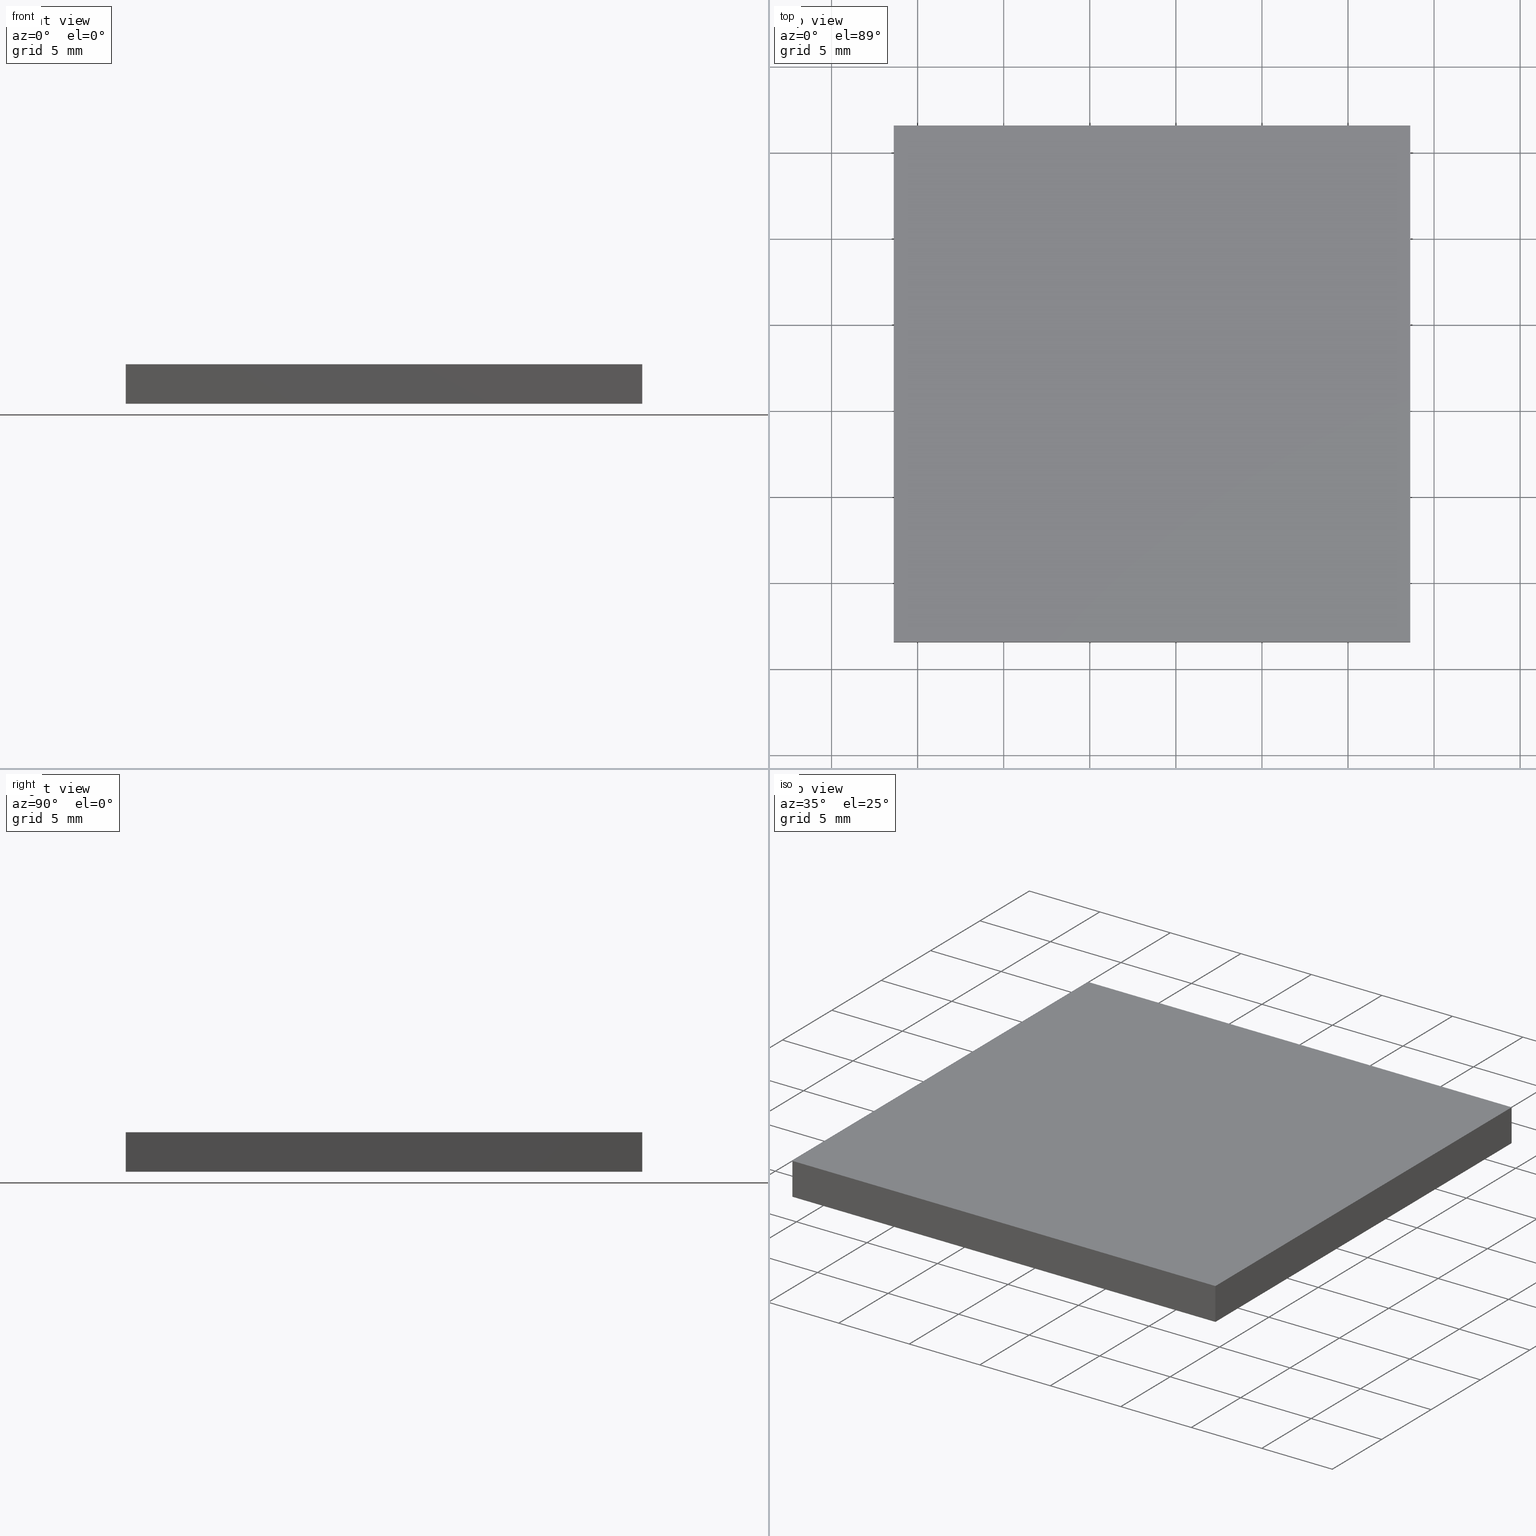
[diagram: canonical four-view strip — front | top / right | iso, engineering-drawing reading convention]
A machine part, canonical four-view strip (front | top / right | iso — engineering-drawing reading convention). The complete STEP part file that produces these views, byte-faithful:
ISO-10303-21;
HEADER;
FILE_DESCRIPTION (( 'STEP AP214' ),
    '1' );
FILE_NAME ('302521.STEP',
    '2019-08-13T06:30:06',
    ( '' ),
    ( '' ),
    'SwSTEP 2.0',
    'SolidWorks 2016',
    '' );
FILE_SCHEMA (( 'AUTOMOTIVE_DESIGN' ));
ENDSEC;

DATA;
#1 = DIRECTION ( 'NONE',  ( 1.000000000000000000, 4.625929269271485900E-016, -0.0000000000000000000 ) ) ;
#2 = DIRECTION ( 'NONE',  ( -1.000000000000000000, -4.625929269271485900E-016, -0.0000000000000000000 ) ) ;
#3 = FACE_OUTER_BOUND ( 'NONE', #202, .T. ) ;
#4 = DIRECTION ( 'NONE',  ( 0.0000000000000000000, 0.0000000000000000000, 1.000000000000000000 ) ) ;
#5 = FACE_OUTER_BOUND ( 'NONE', #192, .T. ) ;
#6 = EDGE_CURVE ( 'NONE', #91, #160, #127, .T. ) ;
#7 =( GEOMETRIC_REPRESENTATION_CONTEXT ( 3 ) GLOBAL_UNCERTAINTY_ASSIGNED_CONTEXT ( ( #95 ) ) GLOBAL_UNIT_ASSIGNED_CONTEXT ( ( #39, #168, #27 ) ) REPRESENTATION_CONTEXT ( 'NONE', 'WORKASPACE' ) );
#8 = ADVANCED_FACE ( 'NONE', ( #172 ), #129, .F. ) ;
#9 = SURFACE_STYLE_USAGE ( .BOTH. , #101 ) ;
#10 = VECTOR ( 'NONE', #88, 1000.000000000000000 ) ;
#11 =( LENGTH_UNIT ( ) NAMED_UNIT ( * ) SI_UNIT ( .MILLI., .METRE. ) );
#12 = CARTESIAN_POINT ( 'NONE',  ( 93.61498394228370000, 46.56324183452659300, 2.299999999999999800 ) ) ;
#13 = DIRECTION ( 'NONE',  ( 0.0000000000000000000, 1.000000000000000000, 0.0000000000000000000 ) ) ;
#14 = CARTESIAN_POINT ( 'NONE',  ( 0.0000000000000000000, 0.0000000000000000000, 2.299999999999999800 ) ) ;
#15 = DIRECTION ( 'NONE',  ( -0.0000000000000000000, -0.0000000000000000000, -1.000000000000000000 ) ) ;
#16 = CARTESIAN_POINT ( 'NONE',  ( 93.61498394228370000, 46.56324183452659300, 0.0000000000000000000 ) ) ;
#17 = EDGE_CURVE ( 'NONE', #188, #128, #82, .T. ) ;
#18 = ORIENTED_EDGE ( 'NONE', *, *, #81, .F. ) ;
#19 = DIRECTION ( 'NONE',  ( -1.000000000000000000, -4.625929269271485900E-016, -0.0000000000000000000 ) ) ;
#20 = ORIENTED_EDGE ( 'NONE', *, *, #81, .T. ) ;
#21 = SHAPE_DEFINITION_REPRESENTATION ( #28, #126 ) ;
#22 = EDGE_CURVE ( 'NONE', #37, #188, #41, .T. ) ;
#23 = CARTESIAN_POINT ( 'NONE',  ( 93.61498394228368600, 76.56324183452659300, 2.299999999999999800 ) ) ;
#24 = ORIENTED_EDGE ( 'NONE', *, *, #6, .F. ) ;
#25 = DIRECTION ( 'NONE',  ( -1.000000000000000000, -4.625929269271483900E-016, 0.0000000000000000000 ) ) ;
#26 = SURFACE_STYLE_FILL_AREA ( #57 ) ;
#27 =( NAMED_UNIT ( * ) SI_UNIT ( $, .STERADIAN. ) SOLID_ANGLE_UNIT ( ) );
#28 = PRODUCT_DEFINITION_SHAPE ( 'NONE', 'NONE',  #165 ) ;
#29 = EDGE_CURVE ( 'NONE', #37, #160, #183, .T. ) ;
#30 = ORIENTED_EDGE ( 'NONE', *, *, #100, .T. ) ;
#31 =( GEOMETRIC_REPRESENTATION_CONTEXT ( 3 ) GLOBAL_UNCERTAINTY_ASSIGNED_CONTEXT ( ( #113 ) ) GLOBAL_UNIT_ASSIGNED_CONTEXT ( ( #132, #86, #199 ) ) REPRESENTATION_CONTEXT ( 'NONE', 'WORKASPACE' ) );
#32 = APPLICATION_CONTEXT ( 'automotive_design' ) ;
#33 = PRESENTATION_LAYER_ASSIGNMENT (  '', '', ( #185 ) ) ;
#34 = FACE_OUTER_BOUND ( 'NONE', #178, .T. ) ;
#35 = COLOUR_RGB ( '',1.000000000000000000, 1.000000000000000000, 1.000000000000000000 ) ;
#36 = PRODUCT_RELATED_PRODUCT_CATEGORY ( 'part', '', ( #74 ) ) ;
#37 = VERTEX_POINT ( 'NONE', #198 ) ;
#38 = VECTOR ( 'NONE', #59, 1000.000000000000000 ) ;
#39 =( LENGTH_UNIT ( ) NAMED_UNIT ( * ) SI_UNIT ( .MILLI., .METRE. ) );
#40 = MANIFOLD_SOLID_BREP ( '͹̨-����1', #157 ) ;
#41 = LINE ( 'NONE', #176, #94 ) ;
#42 = DIRECTION ( 'NONE',  ( 4.625929269271483900E-016, -1.000000000000000000, 0.0000000000000000000 ) ) ;
#43 = CARTESIAN_POINT ( 'NONE',  ( 123.6149839422836900, 76.56324183452660700, 2.299999999999999800 ) ) ;
#44 = CARTESIAN_POINT ( 'NONE',  ( 123.6149839422836900, 46.56324183452659300, 2.299999999999999800 ) ) ;
#45 = DIRECTION ( 'NONE',  ( -4.625929269271483900E-016, 1.000000000000000000, -0.0000000000000000000 ) ) ;
#46 = LINE ( 'NONE', #48, #38 ) ;
#47 = CARTESIAN_POINT ( 'NONE',  ( 93.61498394228368600, 76.56324183452659300, 2.299999999999999800 ) ) ;
#48 = CARTESIAN_POINT ( 'NONE',  ( 93.61498394228368600, 76.56324183452659300, 2.299999999999999800 ) ) ;
#49 = ORIENTED_EDGE ( 'NONE', *, *, #100, .F. ) ;
#50 = AXIS2_PLACEMENT_3D ( 'NONE', #14, #146, #166 ) ;
#51 = ORIENTED_EDGE ( 'NONE', *, *, #17, .F. ) ;
#52 = ORIENTED_EDGE ( 'NONE', *, *, #29, .T. ) ;
#53 = DIRECTION ( 'NONE',  ( -0.0000000000000000000, -0.0000000000000000000, -1.000000000000000000 ) ) ;
#54 = PLANE ( 'NONE',  #200 ) ;
#55 = DIRECTION ( 'NONE',  ( 1.000000000000000000, 0.0000000000000000000, 0.0000000000000000000 ) ) ;
#56 = SURFACE_STYLE_USAGE ( .BOTH. , #77 ) ;
#57 = FILL_AREA_STYLE ('',( #147 ) ) ;
#58 = DIRECTION ( 'NONE',  ( 0.0000000000000000000, -0.0000000000000000000, 1.000000000000000000 ) ) ;
#59 = DIRECTION ( 'NONE',  ( 4.625929269271485900E-016, -1.000000000000000000, 0.0000000000000000000 ) ) ;
#60 = APPLICATION_PROTOCOL_DEFINITION ( 'draft international standard', 'automotive_design', 1998, #32 ) ;
#61 = VECTOR ( 'NONE', #15, 1000.000000000000000 ) ;
#62 = DIRECTION ( 'NONE',  ( 1.000000000000000000, 0.0000000000000000000, 0.0000000000000000000 ) ) ;
#63 = EDGE_CURVE ( 'NONE', #170, #37, #140, .T. ) ;
#64 = ORIENTED_EDGE ( 'NONE', *, *, #93, .T. ) ;
#65 = ORIENTED_EDGE ( 'NONE', *, *, #22, .T. ) ;
#66 = EDGE_CURVE ( 'NONE', #188, #123, #114, .T. ) ;
#67 = ADVANCED_FACE ( 'NONE', ( #72 ), #78, .F. ) ;
#68 = DIRECTION ( 'NONE',  ( 4.625929269271485900E-016, -1.000000000000000000, 0.0000000000000000000 ) ) ;
#69 = ORIENTED_EDGE ( 'NONE', *, *, #29, .F. ) ;
#70 = CARTESIAN_POINT ( 'NONE',  ( 93.61498394228370000, 46.56324183452659300, 0.0000000000000000000 ) ) ;
#71 = DIRECTION ( 'NONE',  ( 4.625929269271485900E-016, -1.000000000000000000, 0.0000000000000000000 ) ) ;
#72 = FACE_OUTER_BOUND ( 'NONE', #186, .T. ) ;
#73 = CARTESIAN_POINT ( 'NONE',  ( 93.61498394228370000, 46.56324183452659300, 2.299999999999999800 ) ) ;
#74 = PRODUCT ( '302521', '302521', '', ( #125 ) ) ;
#75 = CARTESIAN_POINT ( 'NONE',  ( 93.61498394228368600, 76.56324183452659300, 2.299999999999999800 ) ) ;
#76 = CARTESIAN_POINT ( 'NONE',  ( 93.61498394228368600, 76.56324183452659300, 0.0000000000000000000 ) ) ;
#77 = SURFACE_SIDE_STYLE ('',( #84 ) ) ;
#78 = PLANE ( 'NONE',  #98 ) ;
#79 = MECHANICAL_DESIGN_GEOMETRIC_PRESENTATION_REPRESENTATION (  '', ( #185 ), #7 ) ;
#80 = LINE ( 'NONE', #122, #83 ) ;
#81 = EDGE_CURVE ( 'NONE', #123, #105, #138, .T. ) ;
#82 = LINE ( 'NONE', #174, #10 ) ;
#83 = VECTOR ( 'NONE', #45, 1000.000000000000000 ) ;
#84 = SURFACE_STYLE_FILL_AREA ( #177 ) ;
#85 = DIRECTION ( 'NONE',  ( -4.625929269271483900E-016, 1.000000000000000000, -0.0000000000000000000 ) ) ;
#86 =( NAMED_UNIT ( * ) PLANE_ANGLE_UNIT ( ) SI_UNIT ( $, .RADIAN. ) );
#87 = ORIENTED_EDGE ( 'NONE', *, *, #66, .F. ) ;
#88 = DIRECTION ( 'NONE',  ( -0.0000000000000000000, -0.0000000000000000000, -1.000000000000000000 ) ) ;
#89 =( NAMED_UNIT ( * ) PLANE_ANGLE_UNIT ( ) SI_UNIT ( $, .RADIAN. ) );
#90 = CARTESIAN_POINT ( 'NONE',  ( 93.61498394228368600, 76.56324183452659300, 2.299999999999999800 ) ) ;
#91 = VERTEX_POINT ( 'NONE', #16 ) ;
#92 = ORIENTED_EDGE ( 'NONE', *, *, #63, .T. ) ;
#93 = EDGE_CURVE ( 'NONE', #128, #105, #116, .T. ) ;
#94 = VECTOR ( 'NONE', #85, 1000.000000000000000 ) ;
#95 = UNCERTAINTY_MEASURE_WITH_UNIT (LENGTH_MEASURE( 1.000000000000000100E-005 ), #39, 'distance_accuracy_value', 'NONE');
#96 = EDGE_CURVE ( 'NONE', #123, #170, #46, .T. ) ;
#97 = PRODUCT_DEFINITION_FORMATION_WITH_SPECIFIED_SOURCE ( '�κ�', '', #74, .NOT_KNOWN. ) ;
#98 = AXIS2_PLACEMENT_3D ( 'NONE', #106, #180, #135 ) ;
#99 = VECTOR ( 'NONE', #19, 1000.000000000000000 ) ;
#100 = EDGE_CURVE ( 'NONE', #160, #128, #80, .T. ) ;
#101 = SURFACE_SIDE_STYLE ('',( #26 ) ) ;
#102 = PRESENTATION_STYLE_ASSIGNMENT (( #9 ) ) ;
#103 = ADVANCED_FACE ( 'NONE', ( #3 ), #133, .F. ) ;
#104 =( NAMED_UNIT ( * ) SI_UNIT ( $, .STERADIAN. ) SOLID_ANGLE_UNIT ( ) );
#105 = VERTEX_POINT ( 'NONE', #107 ) ;
#106 = CARTESIAN_POINT ( 'NONE',  ( 0.0000000000000000000, 0.0000000000000000000, 0.0000000000000000000 ) ) ;
#107 = CARTESIAN_POINT ( 'NONE',  ( 93.61498394228368600, 76.56324183452659300, 0.0000000000000000000 ) ) ;
#108 = ORIENTED_EDGE ( 'NONE', *, *, #137, .F. ) ;
#109 = ORIENTED_EDGE ( 'NONE', *, *, #6, .T. ) ;
#110 =( GEOMETRIC_REPRESENTATION_CONTEXT ( 3 ) GLOBAL_UNCERTAINTY_ASSIGNED_CONTEXT ( ( #190 ) ) GLOBAL_UNIT_ASSIGNED_CONTEXT ( ( #11, #89, #104 ) ) REPRESENTATION_CONTEXT ( 'NONE', 'WORKASPACE' ) );
#111 = AXIS2_PLACEMENT_3D ( 'NONE', #43, #25, #42 ) ;
#112 = EDGE_LOOP ( 'NONE', ( #154, #92, #65, #115 ) ) ;
#113 = UNCERTAINTY_MEASURE_WITH_UNIT (LENGTH_MEASURE( 1.000000000000000100E-005 ), #132, 'distance_accuracy_value', 'NONE');
#114 = LINE ( 'NONE', #90, #99 ) ;
#115 = ORIENTED_EDGE ( 'NONE', *, *, #66, .T. ) ;
#116 = LINE ( 'NONE', #76, #121 ) ;
#117 = ADVANCED_FACE ( 'NONE', ( #5 ), #118, .F. ) ;
#118 = PLANE ( 'NONE',  #139 ) ;
#119 = CARTESIAN_POINT ( 'NONE',  ( 93.61498394228368600, 76.56324183452659300, 0.0000000000000000000 ) ) ;
#120 = ORIENTED_EDGE ( 'NONE', *, *, #17, .T. ) ;
#121 = VECTOR ( 'NONE', #2, 1000.000000000000000 ) ;
#122 = CARTESIAN_POINT ( 'NONE',  ( 123.6149839422836900, 76.56324183452660700, 0.0000000000000000000 ) ) ;
#123 = VERTEX_POINT ( 'NONE', #47 ) ;
#124 = ORIENTED_EDGE ( 'NONE', *, *, #63, .F. ) ;
#125 = PRODUCT_CONTEXT ( 'NONE', #134, 'mechanical' ) ;
#126 = ADVANCED_BREP_SHAPE_REPRESENTATION ( '302521', ( #40, #143 ), #110 ) ;
#127 = LINE ( 'NONE', #70, #187 ) ;
#128 = VERTEX_POINT ( 'NONE', #151 ) ;
#129 = PLANE ( 'NONE',  #131 ) ;
#130 = COLOUR_RGB ( '',1.000000000000000000, 1.000000000000000000, 1.000000000000000000 ) ;
#131 = AXIS2_PLACEMENT_3D ( 'NONE', #23, #68, #145 ) ;
#132 =( LENGTH_UNIT ( ) NAMED_UNIT ( * ) SI_UNIT ( .MILLI., .METRE. ) );
#133 = PLANE ( 'NONE',  #111 ) ;
#134 = APPLICATION_CONTEXT ( 'automotive_design' ) ;
#135 = DIRECTION ( 'NONE',  ( 1.000000000000000000, 0.0000000000000000000, 0.0000000000000000000 ) ) ;
#136 = EDGE_LOOP ( 'NONE', ( #64, #18, #87, #120 ) ) ;
#137 = EDGE_CURVE ( 'NONE', #105, #91, #167, .T. ) ;
#138 = LINE ( 'NONE', #169, #61 ) ;
#139 = AXIS2_PLACEMENT_3D ( 'NONE', #75, #1, #196 ) ;
#140 = LINE ( 'NONE', #12, #195 ) ;
#141 = ORIENTED_EDGE ( 'NONE', *, *, #193, .T. ) ;
#142 = ORIENTED_EDGE ( 'NONE', *, *, #193, .F. ) ;
#143 = AXIS2_PLACEMENT_3D ( 'NONE', #175, #4, #62 ) ;
#144 = FILL_AREA_STYLE_COLOUR ( '', #35 ) ;
#145 = DIRECTION ( 'NONE',  ( 1.000000000000000000, 4.625929269271485900E-016, 0.0000000000000000000 ) ) ;
#146 = DIRECTION ( 'NONE',  ( -0.0000000000000000000, 0.0000000000000000000, 1.000000000000000000 ) ) ;
#147 = FILL_AREA_STYLE_COLOUR ( '', #130 ) ;
#148 = APPLICATION_PROTOCOL_DEFINITION ( 'draft international standard', 'automotive_design', 1998, #134 ) ;
#149 = ORIENTED_EDGE ( 'NONE', *, *, #137, .T. ) ;
#150 = STYLED_ITEM ( 'NONE', ( #156 ), #126 ) ;
#151 = CARTESIAN_POINT ( 'NONE',  ( 123.6149839422836900, 76.56324183452660700, 0.0000000000000000000 ) ) ;
#152 = ORIENTED_EDGE ( 'NONE', *, *, #93, .F. ) ;
#153 = VECTOR ( 'NONE', #53, 1000.000000000000000 ) ;
#154 = ORIENTED_EDGE ( 'NONE', *, *, #96, .T. ) ;
#155 = VECTOR ( 'NONE', #71, 1000.000000000000000 ) ;
#156 = PRESENTATION_STYLE_ASSIGNMENT (( #56 ) ) ;
#157 = CLOSED_SHELL ( 'NONE', ( #117, #162, #103, #8, #164, #67 ) ) ;
#158 = ORIENTED_EDGE ( 'NONE', *, *, #96, .F. ) ;
#159 = DIRECTION ( 'NONE',  ( 1.000000000000000000, 0.0000000000000000000, 0.0000000000000000000 ) ) ;
#160 = VERTEX_POINT ( 'NONE', #182 ) ;
#161 = PLANE ( 'NONE',  #50 ) ;
#162 = ADVANCED_FACE ( 'NONE', ( #34 ), #54, .F. ) ;
#163 = DIRECTION ( 'NONE',  ( -0.0000000000000000000, -0.0000000000000000000, -1.000000000000000000 ) ) ;
#164 = ADVANCED_FACE ( 'NONE', ( #194 ), #161, .T. ) ;
#165 = PRODUCT_DEFINITION ( 'δ֪', '', #97, #173 ) ;
#166 = DIRECTION ( 'NONE',  ( 1.000000000000000000, 0.0000000000000000000, 0.0000000000000000000 ) ) ;
#167 = LINE ( 'NONE', #119, #155 ) ;
#168 =( NAMED_UNIT ( * ) PLANE_ANGLE_UNIT ( ) SI_UNIT ( $, .RADIAN. ) );
#169 = CARTESIAN_POINT ( 'NONE',  ( 93.61498394228368600, 76.56324183452659300, 2.299999999999999800 ) ) ;
#170 = VERTEX_POINT ( 'NONE', #73 ) ;
#171 = ORIENTED_EDGE ( 'NONE', *, *, #22, .F. ) ;
#172 = FACE_OUTER_BOUND ( 'NONE', #136, .T. ) ;
#173 = PRODUCT_DEFINITION_CONTEXT ( 'detailed design', #32, 'design' ) ;
#174 = CARTESIAN_POINT ( 'NONE',  ( 123.6149839422836900, 76.56324183452660700, 2.299999999999999800 ) ) ;
#175 = CARTESIAN_POINT ( 'NONE',  ( 0.0000000000000000000, 0.0000000000000000000, 0.0000000000000000000 ) ) ;
#176 = CARTESIAN_POINT ( 'NONE',  ( 123.6149839422836900, 76.56324183452660700, 2.299999999999999800 ) ) ;
#177 = FILL_AREA_STYLE ('',( #144 ) ) ;
#178 = EDGE_LOOP ( 'NONE', ( #109, #69, #124, #141 ) ) ;
#179 = CARTESIAN_POINT ( 'NONE',  ( 123.6149839422836900, 76.56324183452660700, 2.299999999999999800 ) ) ;
#180 = DIRECTION ( 'NONE',  ( -0.0000000000000000000, 0.0000000000000000000, 1.000000000000000000 ) ) ;
#181 = CARTESIAN_POINT ( 'NONE',  ( 93.61498394228370000, 46.56324183452659300, 2.299999999999999800 ) ) ;
#182 = CARTESIAN_POINT ( 'NONE',  ( 123.6149839422836900, 46.56324183452659300, 0.0000000000000000000 ) ) ;
#183 = LINE ( 'NONE', #44, #153 ) ;
#184 = PRESENTATION_LAYER_ASSIGNMENT (  '', '', ( #150 ) ) ;
#185 = STYLED_ITEM ( 'NONE', ( #102 ), #40 ) ;
#186 = EDGE_LOOP ( 'NONE', ( #108, #152, #49, #24 ) ) ;
#187 = VECTOR ( 'NONE', #159, 1000.000000000000000 ) ;
#188 = VERTEX_POINT ( 'NONE', #179 ) ;
#189 = MECHANICAL_DESIGN_GEOMETRIC_PRESENTATION_REPRESENTATION (  '', ( #150 ), #31 ) ;
#190 = UNCERTAINTY_MEASURE_WITH_UNIT (LENGTH_MEASURE( 1.000000000000000100E-005 ), #11, 'distance_accuracy_value', 'NONE');
#191 = LINE ( 'NONE', #201, #197 ) ;
#192 = EDGE_LOOP ( 'NONE', ( #149, #142, #158, #20 ) ) ;
#193 = EDGE_CURVE ( 'NONE', #170, #91, #191, .T. ) ;
#194 = FACE_OUTER_BOUND ( 'NONE', #112, .T. ) ;
#195 = VECTOR ( 'NONE', #55, 1000.000000000000000 ) ;
#196 = DIRECTION ( 'NONE',  ( -4.625929269271485900E-016, 1.000000000000000000, 0.0000000000000000000 ) ) ;
#197 = VECTOR ( 'NONE', #163, 1000.000000000000000 ) ;
#198 = CARTESIAN_POINT ( 'NONE',  ( 123.6149839422836900, 46.56324183452659300, 2.299999999999999800 ) ) ;
#199 =( NAMED_UNIT ( * ) SI_UNIT ( $, .STERADIAN. ) SOLID_ANGLE_UNIT ( ) );
#200 = AXIS2_PLACEMENT_3D ( 'NONE', #181, #13, #58 ) ;
#201 = CARTESIAN_POINT ( 'NONE',  ( 93.61498394228370000, 46.56324183452659300, 2.299999999999999800 ) ) ;
#202 = EDGE_LOOP ( 'NONE', ( #30, #51, #171, #52 ) ) ;
ENDSEC;
END-ISO-10303-21;
